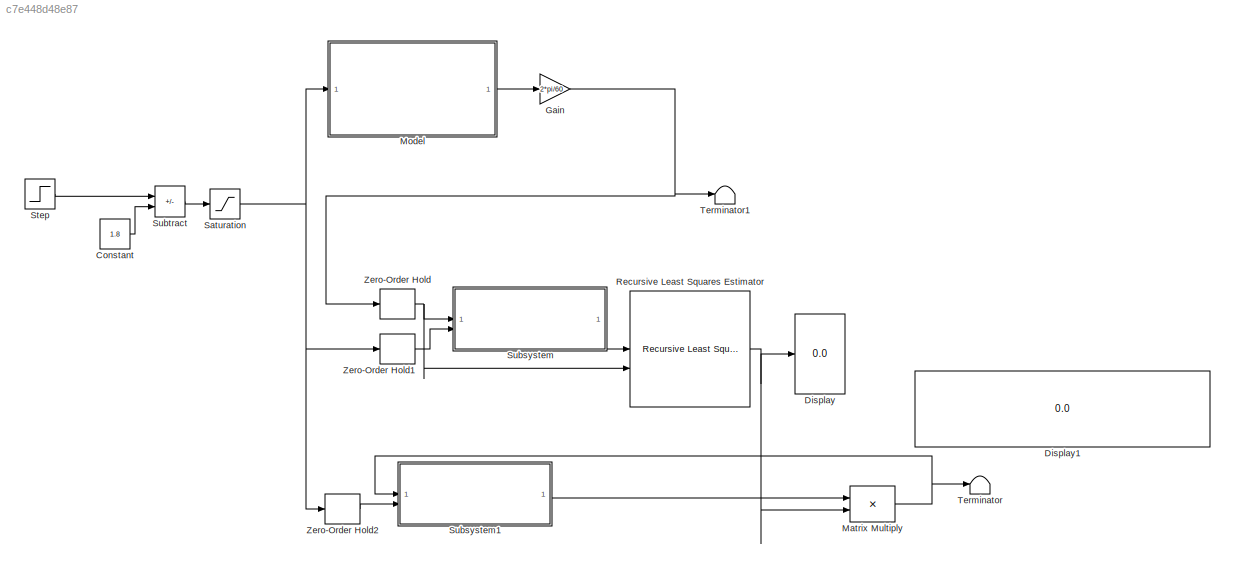
MODEL slx_c7e448d48e87
KIND model
CONFIG AbsTol = auto
CONFIG EnableMultiTasking = off
CONFIG FixedStep = 0.001
CONFIG MaxStep = auto
CONFIG MinStep = auto
CONFIG RelTol = 1e-3
CONFIG SampleTimeConstraint = Unconstrained
CONFIG SolverName = FixedStepAuto
CONFIG StartTime = 0.0
CONFIG StopTime = 100
BLOCK [Constant] Constant
  Value = 1.8
BLOCK [Display] Display
  Decimation = 1
BLOCK [Display] Display1
  Decimation = 1
BLOCK [Gain] Gain
  Gain = 2*pi/60
BLOCK [Product] Matrix Multiply
  Multiplication = Matrix(*)
BLOCK [ModelReference] Model
  ModelNameDialog = PhysicalModel.slx
  ModelReferenceVersion = 1.26
BLOCK [Reference] Recursive Least Squares Estimator  REF=ctrlSharedLib/Recursive Least Squares Estimator
  LibrarySourceBlock = slident/Estimators/Recursive Least Squares Estimator
  SourceBlock = ctrlSharedLib/Recursive Least Squares Estimator
  SourceType = idEstimatorsRLS
BLOCK [Saturate] Saturation
  LowerLimit = 0
  UpperLimit = inf
BLOCK [Step] Step
  After = 12
  SampleTime = 0
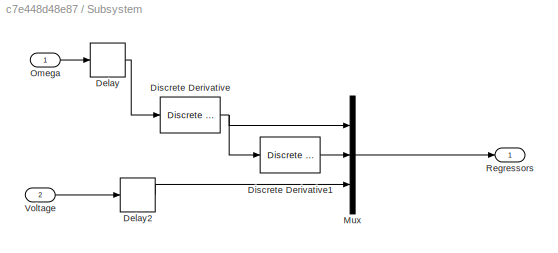
BLOCK [SubSystem] Subsystem
BLOCK [Delay] Subsystem/Delay
  DelayLength = 1
  InputPortMap = u0
BLOCK [Delay] Subsystem/Delay2
  DelayLength = 1
  InputPortMap = u0
BLOCK [Reference] Subsystem/Discrete Derivative  REF=simulink/Discrete/Discrete Derivative
  SourceBlock = simulink/Discrete/Discrete Derivative
  SourceType = Discrete Derivative
BLOCK [Reference] Subsystem/Discrete Derivative1  REF=simulink/Discrete/Discrete Derivative
  SourceBlock = simulink/Discrete/Discrete Derivative
  SourceType = Discrete Derivative
BLOCK [Mux] Subsystem/Mux
  DisplayOption = bar
  Inputs = 3
BLOCK [Inport] Subsystem/Omega
BLOCK [Outport] Subsystem/Regressors
BLOCK [Inport] Subsystem/Voltage
  Port = 2
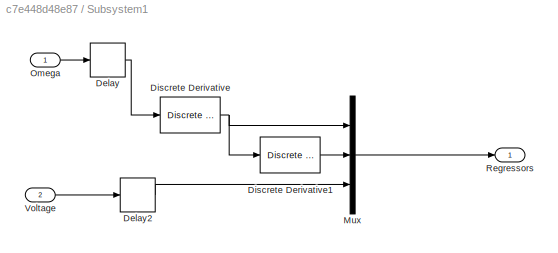
BLOCK [SubSystem] Subsystem1
BLOCK [Delay] Subsystem1/Delay
  DelayLength = 1
  InputPortMap = u0
BLOCK [Delay] Subsystem1/Delay2
  DelayLength = 1
  InputPortMap = u0
BLOCK [Reference] Subsystem1/Discrete Derivative  REF=simulink/Discrete/Discrete Derivative
  SourceBlock = simulink/Discrete/Discrete Derivative
  SourceType = Discrete Derivative
BLOCK [Reference] Subsystem1/Discrete Derivative1  REF=simulink/Discrete/Discrete Derivative
  SourceBlock = simulink/Discrete/Discrete Derivative
  SourceType = Discrete Derivative
BLOCK [Mux] Subsystem1/Mux
  DisplayOption = bar
  Inputs = 3
BLOCK [Inport] Subsystem1/Omega
BLOCK [Outport] Subsystem1/Regressors
BLOCK [Inport] Subsystem1/Voltage
  Port = 2
BLOCK [Sum] Subtract
  IconShape = rectangular
  Inputs = +-
BLOCK [Terminator] Terminator
BLOCK [Terminator] Terminator1
BLOCK [ZeroOrderHold] Zero-Order Hold
  SampleTime = -1
BLOCK [ZeroOrderHold] Zero-Order Hold1
  SampleTime = -1
BLOCK [ZeroOrderHold] Zero-Order Hold2
  SampleTime = -1
LINE Constant:1 -> Subtract:2
NET Gain:1 -> Terminator1:1, Zero-Order Hold:1
NET Matrix Multiply:1 -> Subsystem1:1, Terminator:1
LINE Model:1 -> Gain:1
NET Recursive Least Squares Estimator:1 -> Display:1, Matrix Multiply:2
NET Saturation:1 -> Model:1, Zero-Order Hold1:1, Zero-Order Hold2:1
LINE Step:1 -> Subtract:1
LINE Subsystem/Delay2:1 -> Subsystem/Mux:3
LINE Subsystem/Delay:1 -> Subsystem/Discrete Derivative:1
LINE Subsystem/Discrete Derivative1:1 -> Subsystem/Mux:2
NET Subsystem/Discrete Derivative:1 -> Subsystem/Discrete Derivative1:1, Subsystem/Mux:1
LINE Subsystem/Mux:1 -> Subsystem/Regressors:1
LINE Subsystem/Omega:1 -> Subsystem/Delay:1
LINE Subsystem/Voltage:1 -> Subsystem/Delay2:1
LINE Subsystem1/Delay2:1 -> Subsystem1/Mux:3
LINE Subsystem1/Delay:1 -> Subsystem1/Discrete Derivative:1
LINE Subsystem1/Discrete Derivative1:1 -> Subsystem1/Mux:2
NET Subsystem1/Discrete Derivative:1 -> Subsystem1/Discrete Derivative1:1, Subsystem1/Mux:1
LINE Subsystem1/Mux:1 -> Subsystem1/Regressors:1
LINE Subsystem1/Omega:1 -> Subsystem1/Delay:1
LINE Subsystem1/Voltage:1 -> Subsystem1/Delay2:1
LINE Subsystem1:1 -> Matrix Multiply:1
LINE Subsystem:1 -> Recursive Least Squares Estimator:1
LINE Subtract:1 -> Saturation:1
LINE Zero-Order Hold1:1 -> Subsystem:2
LINE Zero-Order Hold2:1 -> Subsystem1:2
NET Zero-Order Hold:1 -> Recursive Least Squares Estimator:2, Subsystem:1
note: NET lines group one-source signal fan-out (src -> all destinations, sorted); 1:1 wires keep LINE
